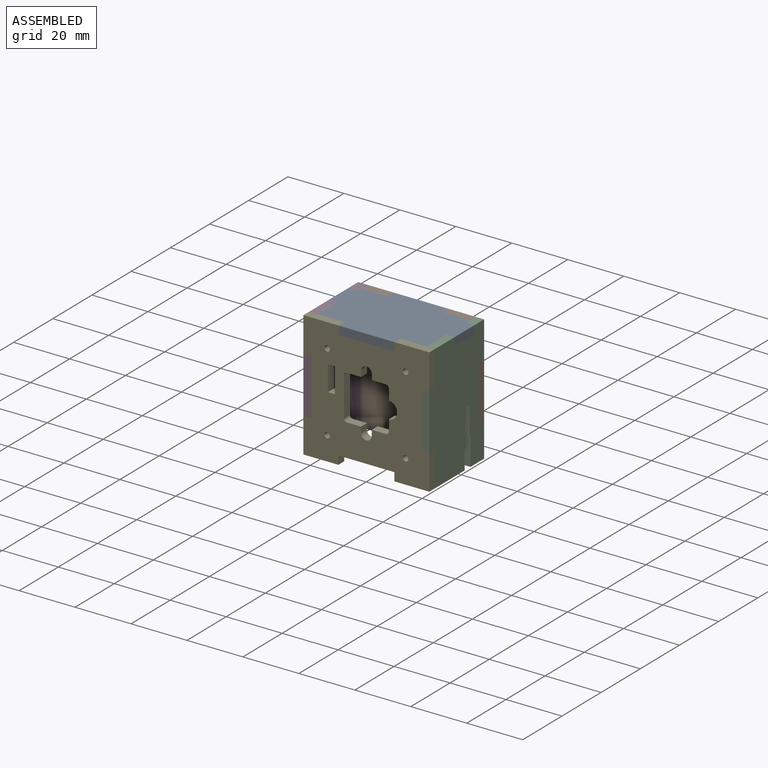
[diagram: assembled view]
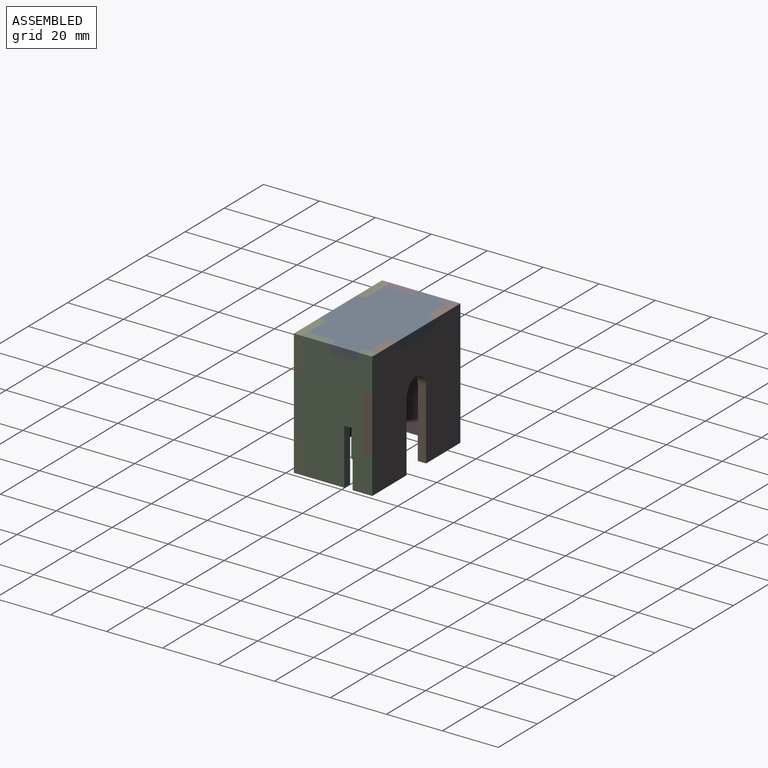
[diagram: assembled view, second angle]
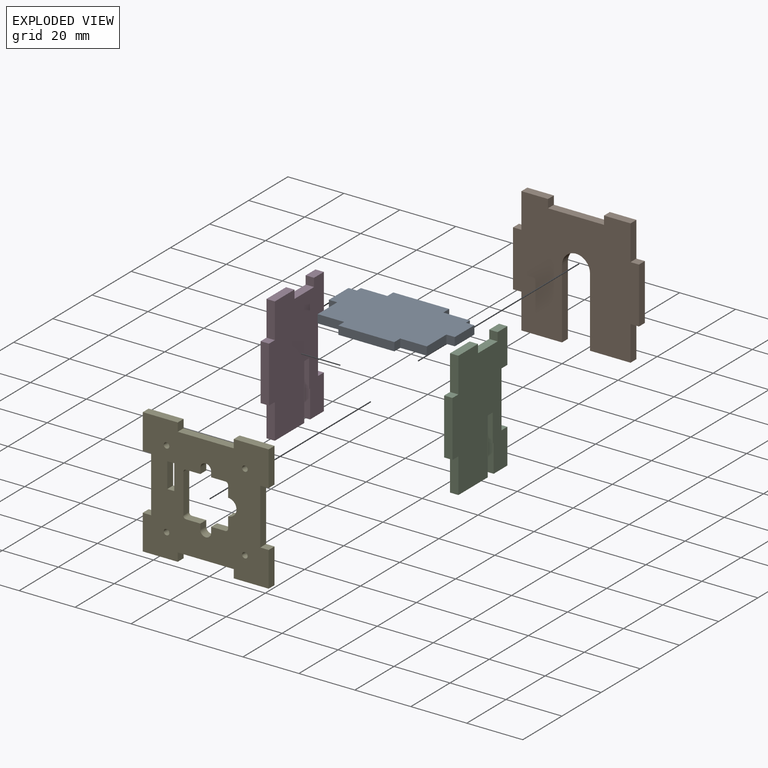
[diagram: exploded view]
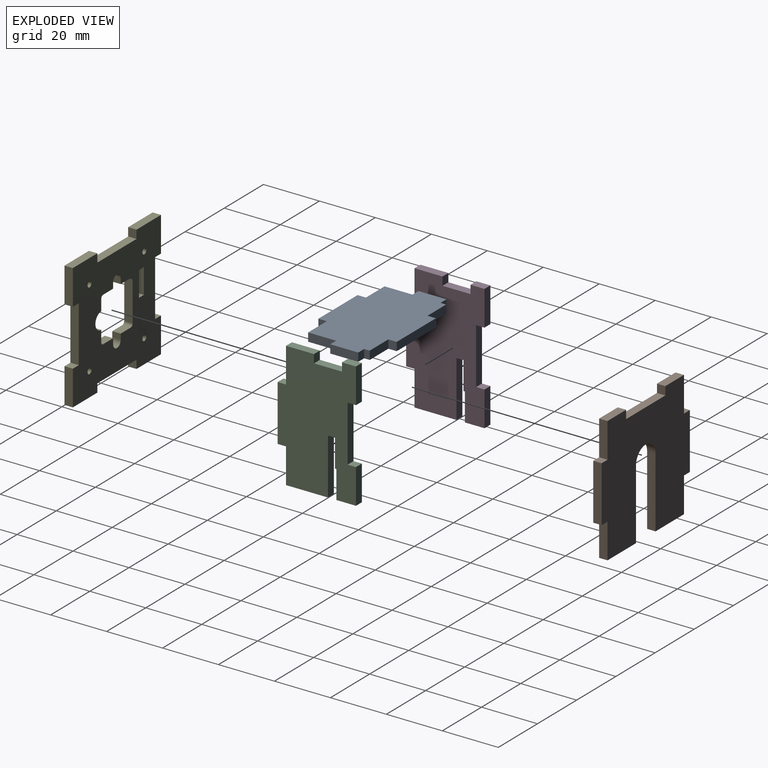
[diagram: exploded view, second angle]
ASSEMBLY  parts=5 mates=4
PART A: 22 faces, bbox 45x28x3 mm
  f0: plane 3x3mm, normal (1,0,0), area 9mm2, adj f1,f19,f20,f21
  f1: plane 9.5x3mm, normal (0,-1,0), area 28.5mm2, adj f0,f2,f20,f21
  f2: plane 10x3mm, normal (1,0,0), area 30mm2, adj f1,f3,f20,f21
  f3: plane 3x3mm, normal (0,-1,0), area 9mm2, adj f2,f4,f20,f21
  f4: plane 10x3mm, normal (1,0,0), area 30mm2, adj f3,f5,f20,f21
  f5: plane 3x3mm, normal (0,1,0), area 9mm2, adj f4,f6,f20,f21
  f6: plane 3x2mm, normal (1,0,0), area 6mm2, adj f5,f7,f20,f21
  f7: plane 9.5x3mm, normal (0,1,0), area 28.5mm2, adj f6,f8,f20,f21
  f8: plane 3x3mm, normal (1,0,0), area 9mm2, adj f7,f9,f20,f21
  f9: plane 20x3mm, normal (0,1,0), area 60mm2, adj f8,f10,f20,f21
  f10: plane 3x3mm, normal (-1,0,0), area 9mm2, adj f9,f11,f20,f21
  f11: plane 9.5x3mm, normal (0,1,0), area 28.5mm2, adj f10,f12,f20,f21
  f12: plane 3x2mm, normal (-1,0,0), area 6mm2, adj f11,f13,f20,f21
  f13: plane 3x3mm, normal (0,1,0), area 9mm2, adj f12,f14,f20,f21
  f14: plane 10x3mm, normal (-1,0,0), area 30mm2, adj f13,f15,f20,f21
  f15: plane 3x3mm, normal (0,-1,0), area 9mm2, adj f14,f16,f20,f21
  f16: plane 10x3mm, normal (-1,0,0), area 30mm2, adj f15,f17,f20,f21
  f17: plane 9.5x3mm, normal (0,-1,0), area 28.5mm2, adj f16,f18,f20,f21
  f18: plane 3x3mm, normal (-1,0,0), area 9mm2, adj f17,f19,f20,f21
  f19: plane 20x3mm, normal (0,-1,0), area 60mm2, adj f0,f18,f20,f21
  f20: plane 45x28mm, normal (0,0,-1), area 1038mm2, adj f0,f1,f2,f3,f4,f5,f6,f7
  f21: plane 45x28mm, normal (0,0,1), area 1038mm2, adj f0,f1,f2,f3,f4,f5,f6,f7
PART B: 22 faces, bbox 45x3x45 mm
  f0: plane 9.5x3mm, normal (0,0,1), area 28.5mm2, adj f1,f19,f20,f21
  f1: plane 12.5x3mm, normal (1,0,0), area 37.5mm2, adj f0,f2,f20,f21
  f2: plane 3x3mm, normal (0,0,1), area 9mm2, adj f1,f3,f20,f21
  f3: plane 20x3mm, normal (1,0,0), area 60mm2, adj f2,f4,f20,f21
  f4: plane 3x3mm, normal (0,0,-1), area 9mm2, adj f3,f5,f20,f21
  f5: plane 12.5x3mm, normal (1,0,0), area 37.5mm2, adj f4,f6,f20,f21
  f6: plane 14.5x3mm, normal (0,0,-1), area 43.5mm2, adj f5,f7,f20,f21
  f7: plane 25x3mm, normal (-1,0,0), area 75mm2, adj f6,f8,f20,f21
  f8: cylinder r=5mm len=10mm, axis (0,-1,0), area 47.1mm2, adj f7,f9,f20,f21
  f9: plane 25x3mm, normal (1,0,0), area 75mm2, adj f8,f10,f20,f21
  f10: plane 14.5x3mm, normal (0,0,-1), area 43.5mm2, adj f9,f11,f20,f21
  f11: plane 12.5x3mm, normal (-1,0,0), area 37.5mm2, adj f10,f12,f20,f21
  f12: plane 3x3mm, normal (0,0,-1), area 9mm2, adj f11,f13,f20,f21
  f13: plane 20x3mm, normal (-1,0,0), area 60mm2, adj f12,f14,f20,f21
  f14: plane 3x3mm, normal (0,0,1), area 9mm2, adj f13,f15,f20,f21
  f15: plane 12.5x3mm, normal (-1,0,0), area 37.5mm2, adj f14,f16,f20,f21
  f16: plane 9.5x3mm, normal (0,0,1), area 28.5mm2, adj f15,f17,f20,f21
  f17: plane 3x3mm, normal (1,0,0), area 9mm2, adj f16,f18,f20,f21
  f18: plane 20x3mm, normal (0,0,1), area 60mm2, adj f17,f19,f20,f21
  f19: plane 3x3mm, normal (-1,0,0), area 9mm2, adj f0,f18,f20,f21
  f20: plane 45x45mm, normal (0,1,0), area 1525.7mm2, adj f0,f1,f2,f3,f4,f5,f6,f7
  f21: plane 45x45mm, normal (0,-1,0), area 1525.7mm2, adj f0,f1,f2,f3,f4,f5,f6,f7
PART C: 24 faces, bbox 3x28x45 mm
  f0: plane 3x2.5mm, normal (0,0,-1), area 7.5mm2, adj f1,f21,f22,f23
  f1: plane 10x3mm, normal (0,-1,0), area 30mm2, adj f0,f2,f22,f23
  f2: plane 3x0.5mm, normal (0,0,-1), area 1.5mm2, adj f1,f3,f22,f23
  f3: plane 10x3mm, normal (0,-1,0), area 30mm2, adj f2,f4,f22,f23
  f4: plane 7x3mm, normal (0,0,-1), area 21mm2, adj f3,f5,f22,f23
  f5: plane 12.5x3mm, normal (0,1,0), area 37.5mm2, adj f4,f6,f22,f23
  f6: plane 3x3mm, normal (0,0,1), area 9mm2, adj f5,f7,f22,f23
  f7: plane 20x3mm, normal (0,1,0), area 60mm2, adj f6,f8,f22,f23
  f8: plane 3x3mm, normal (0,0,-1), area 9mm2, adj f7,f9,f22,f23
  f9: plane 12.5x3mm, normal (0,1,0), area 37.5mm2, adj f8,f10,f22,f23
  f10: plane 5x3mm, normal (0,0,1), area 15mm2, adj f9,f11,f22,f23
  f11: plane 3x3mm, normal (0,-1,0), area 9mm2, adj f10,f12,f22,f23
  f12: plane 10x3mm, normal (0,0,1), area 30mm2, adj f11,f13,f22,f23
  f13: plane 3x3mm, normal (0,1,0), area 9mm2, adj f12,f14,f22,f23
  f14: plane 10x3mm, normal (0,0,1), area 30mm2, adj f13,f15,f22,f23
  f15: plane 12.5x3mm, normal (0,-1,0), area 37.5mm2, adj f14,f16,f22,f23
  f16: plane 3x3mm, normal (0,0,1), area 9mm2, adj f15,f17,f22,f23
  f17: plane 20x3mm, normal (0,-1,0), area 60mm2, adj f16,f18,f22,f23
  f18: plane 3x3mm, normal (0,0,-1), area 9mm2, adj f17,f19,f22,f23
  f19: plane 12.5x3mm, normal (0,-1,0), area 37.5mm2, adj f18,f20,f22,f23
  f20: plane 15x3mm, normal (0,0,-1), area 45mm2, adj f19,f21,f22,f23
  f21: plane 20x3mm, normal (0,1,0), area 60mm2, adj f0,f20,f22,f23
  f22: plane 45x28mm, normal (-1,0,0), area 1040mm2, adj f0,f1,f2,f3,f4,f5,f6,f7
  f23: plane 45x28mm, normal (1,0,0), area 1040mm2, adj f0,f1,f2,f3,f4,f5,f6,f7
PART D: same geometry as C
PART E: 48 faces, bbox 45x3x45 mm
  f0: plane 12.5x3mm, normal (-1,0,0), area 37.5mm2, adj f1,f45,f46,f47
  f1: plane 3x3mm, normal (0,0,-1), area 9mm2, adj f0,f2,f46,f47
  f2: plane 20x3mm, normal (-1,0,0), area 60mm2, adj f1,f3,f46,f47
  f3: plane 3x3mm, normal (0,0,1), area 9mm2, adj f2,f4,f46,f47
  f4: plane 12.5x3mm, normal (-1,0,0), area 37.5mm2, adj f3,f5,f46,f47
  f5: plane 12.5x3mm, normal (0,0,-1), area 37.5mm2, adj f4,f6,f46,f47
  f6: plane 3x3mm, normal (1,0,0), area 9mm2, adj f5,f7,f46,f47
  f7: plane 20x3mm, normal (0,0,-1), area 60mm2, adj f6,f8,f46,f47
  f8: plane 3x3mm, normal (-1,0,0), area 9mm2, adj f7,f9,f46,f47
  f9: plane 12.5x3mm, normal (0,0,-1), area 37.5mm2, adj f8,f10,f46,f47
  f10: plane 12.5x3mm, normal (1,0,0), area 37.5mm2, adj f9,f11,f46,f47
  f11: plane 3x3mm, normal (0,0,1), area 9mm2, adj f10,f12,f46,f47
  f12: plane 20x3mm, normal (1,0,0), area 60mm2, adj f11,f13,f46,f47
  f13: plane 3x3mm, normal (0,0,-1), area 9mm2, adj f12,f14,f46,f47
  f14: plane 12.5x3mm, normal (1,0,0), area 37.5mm2, adj f13,f15,f46,f47
  f15: plane 12.5x3mm, normal (0,0,1), area 37.5mm2, adj f14,f16,f46,f47
  f16: plane 3x3mm, normal (-1,0,0), area 9mm2, adj f15,f17,f46,f47
  f17: plane 20x3mm, normal (0,0,1), area 60mm2, adj f16,f18,f46,f47
  f18: plane 3x3mm, normal (1,0,0), area 9mm2, adj f17,f45,f46,f47
  f19: plane 9x3mm, normal (1,0,0), area 27mm2, adj f20,f43,f46,f47
  f20: plane 3x2.5mm, normal (0,0,-1), area 7.5mm2, adj f19,f21,f46,f47
  f21: plane 9x3mm, normal (-1,0,0), area 27mm2, adj f20,f43,f46,f47
  f22: plane 4x3mm, normal (-1,0,0), area 12mm2, adj f23,f44,f46,f47
  f23: cylinder r=3mm len=6mm, axis (0,-1,0), area 28.3mm2, adj f22,f24,f46,f47
  f24: plane 4x3mm, normal (-1,0,0), area 12mm2, adj f23,f25,f46,f47
  f25: cylinder r=1mm len=3mm, axis (0,-1,0), area 4.7mm2, adj f24,f26,f46,f47
  f26: plane 5.08x3mm, normal (0,0,1), area 15.2mm2, adj f25,f27,f46,f47
  f27: plane 3x2mm, normal (-1,0,0), area 6mm2, adj f26,f28,f46,f47
  f28: cylinder r=1.92mm len=3.85mm, axis (0,-1,0), area 18.1mm2, adj f27,f29,f46,f47
  f29: plane 3x2mm, normal (1,0,0), area 6mm2, adj f28,f30,f46,f47
  f30: plane 5.08x3mm, normal (0,0,1), area 15.2mm2, adj f29,f31,f46,f47
  f31: cylinder r=1mm len=3mm, axis (0,-1,0), area 4.7mm2, adj f30,f32,f46,f47
  f32: plane 14x3mm, normal (1,0,0), area 42mm2, adj f31,f33,f46,f47
  f33: cylinder r=1mm len=3mm, axis (0,-1,0), area 4.7mm2, adj f32,f34,f46,f47
  f34: plane 5.08x3mm, normal (0,0,-1), area 15.2mm2, adj f33,f35,f46,f47
  f35: plane 3x2mm, normal (1,0,0), area 6mm2, adj f34,f36,f46,f47
  f36: cylinder r=1.92mm len=3.85mm, axis (0,-1,0), area 18.1mm2, adj f35,f37,f46,f47
  f37: plane 3x2mm, normal (-1,0,0), area 6mm2, adj f36,f38,f46,f47
  f38: plane 5.08x3mm, normal (0,0,-1), area 15.2mm2, adj f37,f44,f46,f47
  f39: cylinder r=1mm len=3mm, axis (0,-1,0), area 18.8mm2, adj f46,f47
  f40: cylinder r=1mm len=3mm, axis (0,-1,0), area 18.8mm2, adj f46,f47
  f41: cylinder r=1mm len=3mm, axis (0,-1,0), area 18.8mm2, adj f46,f47
  f42: cylinder r=1mm len=3mm, axis (0,-1,0), area 18.8mm2, adj f46,f47
  f43: plane 3x2.5mm, normal (0,0,1), area 7.5mm2, adj f19,f21,f46,f47
  f44: cylinder r=1mm len=3mm, axis (0,-1,0), area 4.7mm2, adj f22,f38,f46,f47
  f45: plane 12.5x3mm, normal (0,0,1), area 37.5mm2, adj f0,f18,f46,f47
  f46: plane 45x45mm, normal (0,1,0), area 1453.6mm2, adj f0,f1,f2,f3,f4,f5,f6,f7
  f47: plane 45x45mm, normal (0,-1,0), area 1453.6mm2, adj f0,f1,f2,f3,f4,f5,f6,f7
PLACE A t=(-22.14,3.18,2.67)mm fixed
PLACE B t=(-22.14,3.18,2.67)mm
PLACE C t=(-22.14,3.18,2.67)mm
PLACE D t=(-64.14,3.18,2.67)mm
PLACE E t=(-22.14,3.18,2.67)mm
MATE fastened D.f22 <-> A.f14  axis (-1,0,0) through (-44.64,26.18,25.17)mm
MATE slider E.f47 <-> C.f17  axis (0,-1,0) through (-1.14,3.18,12.67)mm
MATE fastened A.f4 <-> C.f23  axis (1,0,0) through (0.36,21.18,22.17)mm
MATE fastened B.f20 <-> D.f9  axis (0,1,0) through (-44.64,31.18,12.67)mm
